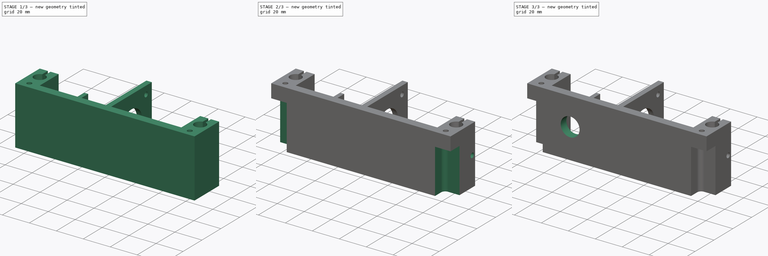
[diagram: build sequence overview — one tinted view per stage of 3, left to right]
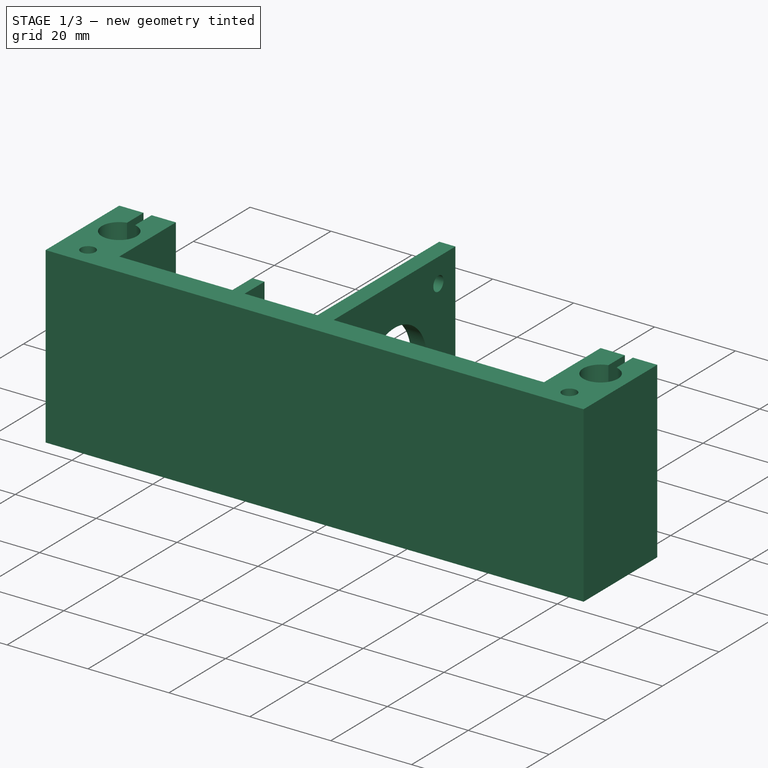
[diagram: stage 1 of 3 — iso view after this stage's code; geometry added in this stage tinted green]
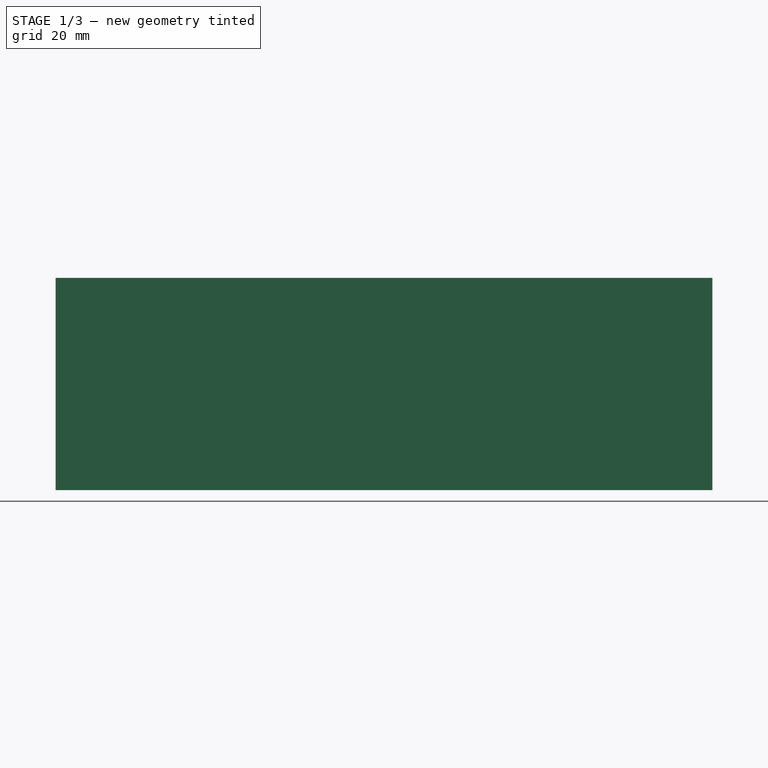
[diagram: stage 1 of 3 — front view after this stage's code; geometry added in this stage tinted green]
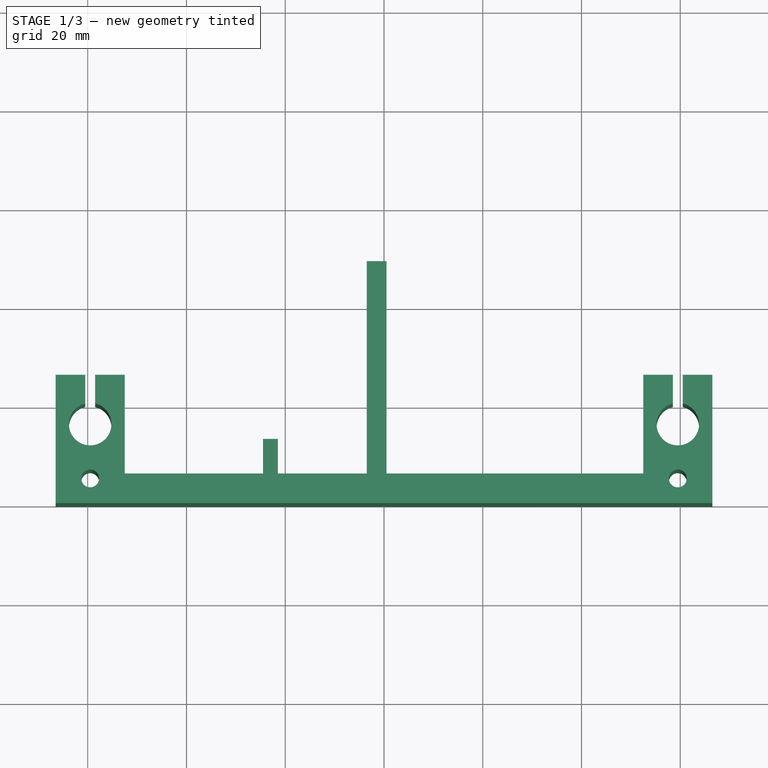
[diagram: stage 1 of 3 — top view after this stage's code; geometry added in this stage tinted green]
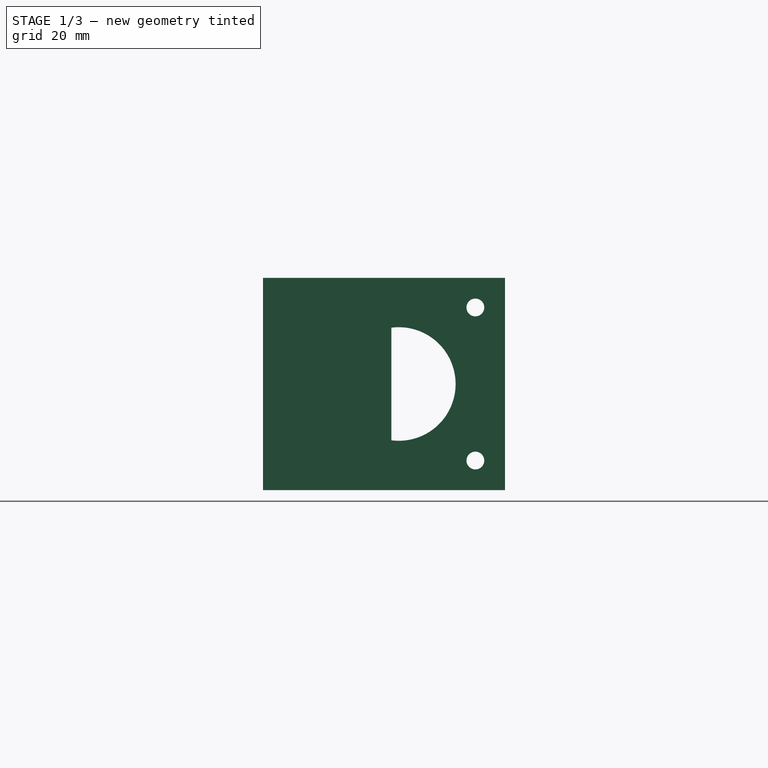
[diagram: stage 1 of 3 — right view after this stage's code; geometry added in this stage tinted green]
FCSTD DOCUMENT  (FreeCAD 0.16R6706 (Git))
Label: Suporte Motor X
License: All rights reserved
LicenseURL: http://en.wikipedia.org/wiki/All_rights_reserved
objects: Sketcher::SketchObject×6, PartDesign::Pocket×5, PartDesign::Pad×1
note: 18 computed .brp shape members not serialized (recipe doc carries the construction recipe); baked Part::Feature solids carry a one-line shape summary decoded from their .brp

FEATURE [Sketcher::SketchObject] Sketch  label="sk Base"
  sketch-geometry (28):
    g0: LineSegment [constr] StartX=-59.5 StartY=16 StartZ=0 EndX=59.5 EndY=16 EndZ=0
    g1: ArcOfCircle CenterX=-59.5 CenterY=16 CenterZ=0 NormalX=0 NormalY=0 NormalZ=1 Radius=4.3 StartAngle=1.8055 EndAngle=7.61927
    g2: ArcOfCircle CenterX=59.5 CenterY=16 CenterZ=0 NormalX=0 NormalY=0 NormalZ=1 Radius=4.3 StartAngle=1.8055 EndAngle=7.61927
    g3: LineSegment StartX=-66.5 StartY=0 StartZ=0 EndX=-66.5 EndY=26 EndZ=0
    g4: LineSegment StartX=-52.5 StartY=26 StartZ=0 EndX=-52.5 EndY=6 EndZ=0
    g5: LineSegment StartX=-52.5 StartY=6 StartZ=0 EndX=-24.5 EndY=6 EndZ=0
    g6: LineSegment StartX=-24.5 StartY=6 StartZ=0 EndX=-24.5 EndY=13 EndZ=0
    g7: LineSegment StartX=-24.5 StartY=13 StartZ=0 EndX=-21.5 EndY=13 EndZ=0
    g8: LineSegment StartX=-21.5 StartY=13 StartZ=0 EndX=-21.5 EndY=6 EndZ=0
    g9: LineSegment StartX=-21.5 StartY=6 StartZ=0 EndX=-3.5 EndY=6 EndZ=0
    g10: LineSegment StartX=-3.5 StartY=6 StartZ=0 EndX=-3.5 EndY=49 EndZ=0
    g11: LineSegment StartX=-3.5 StartY=49 StartZ=0 EndX=0.5 EndY=49 EndZ=0
    g12: LineSegment StartX=0.5 StartY=49 StartZ=0 EndX=0.5 EndY=6 EndZ=0
    g13: LineSegment StartX=0.5 StartY=6 StartZ=0 EndX=52.5 EndY=6 EndZ=0
    g14: LineSegment StartX=52.5 StartY=6 StartZ=0 EndX=52.5 EndY=26 EndZ=0
    g15: LineSegment StartX=66.5 StartY=26 StartZ=0 EndX=66.5 EndY=0 EndZ=0
    g16: LineSegment StartX=66.5 StartY=0 StartZ=0 EndX=-66.5 EndY=0 EndZ=0
    g17: LineSegment [constr] StartX=-59.5 StartY=5 StartZ=0 EndX=59.5 EndY=5 EndZ=0
    g18: Circle CenterX=-59.5 CenterY=5 CenterZ=0 NormalX=0 NormalY=0 NormalZ=1 Radius=1.8
    g19: Circle CenterX=59.5 CenterY=5 CenterZ=0 NormalX=0 NormalY=0 NormalZ=1 Radius=1.8
    g20: LineSegment StartX=-66.5 StartY=26 StartZ=0 EndX=-60.5 EndY=26 EndZ=0
    g21: LineSegment StartX=-58.5 StartY=26 StartZ=0 EndX=-52.5 EndY=26 EndZ=0
    g22: LineSegment StartX=-60.5 StartY=26 StartZ=0 EndX=-60.5 EndY=20.1821 EndZ=0
    g23: LineSegment StartX=-58.5 StartY=26 StartZ=0 EndX=-58.5 EndY=20.1821 EndZ=0
    g24: LineSegment StartX=52.5 StartY=26 StartZ=0 EndX=58.5 EndY=26 EndZ=0
    g25: LineSegment StartX=60.5 StartY=26 StartZ=0 EndX=66.5 EndY=26 EndZ=0
    g26: LineSegment StartX=60.5 StartY=26 StartZ=0 EndX=60.5 EndY=20.1821 EndZ=0
    g27: LineSegment StartX=58.5 StartY=26 StartZ=0 EndX=58.5 EndY=20.1821 EndZ=0
  constraints (83):
    c: DistanceX(g0,g0) = 119
    c: Radius(g1) = 4.3
    c: Equal(g1,g2) = 4.3
    c: Coincident(g1,g0)
    c: Coincident(g0,g2)
    c: Coincident(g4,g5)
    c: Coincident(g5,g6)
    c: Coincident(g6,g7)
    c: Coincident(g7,g8)
    c: Coincident(g8,g9)
    c: Coincident(g9,g10)
    c: Coincident(g10,g11)
    c: Coincident(g11,g12)
    c: Coincident(g12,g13)
    c: Coincident(g13,g14)
    c: Coincident(g15,g16)
    c: Coincident(g3,g16)
    c: Vertical(g3)
    c: Vertical(g4)
    c: Vertical(g6)
    c: Vertical(g8)
    c: Vertical(g10)
    c: Vertical(g12)
    c: Vertical(g14)
    c: Vertical(g15)
    c: Horizontal(g16)
    c: Horizontal(g5)
    c: Horizontal(g9)
    c: Horizontal(g7)
    c: Horizontal(g11)
    c: Horizontal(g13)
    c: DistanceY(g15,g13) = 6
    c: DistanceY(g13,g0) = 10
    c: Equal(g15,g3)
    c: DistanceX(g14,g15) = 14
    c: PointOnObject(g9,g13)
    c: PointOnObject(g5,g13)
    c: DistanceX(g11,g11) = 4
    c: DistanceY(g12,g12) = 43
    c: DistanceX(g7,g7) = 3
    c: DistanceY(g8,g8) = 7
    c: DistanceX(g4,g5) = 28
    c: Symmetric(g3,g15,g-1)
    c: Horizontal(g17)
    c: Equal(g0,g17) = 119
    c: Symmetric(g17,g17,g-2)
    c: DistanceY(g17,g0) = 11
    c: Radius(g18) = 1.8
    c: Equal(g18,g19) = 1.8
    c: Coincident(g18,g17)
    c: Coincident(g17,g19)
    c: Horizontal(g21)
    c: Horizontal(g20)
    c: Equal(g20,g21)
    c: Coincident(g21,g4)
    c: Coincident(g3,g20)
    c: DistanceX(g20,g21) = 2
    c: Vertical(g23)
    c: Vertical(g22)
    c: Coincident(g21,g23)
    c: Coincident(g20,g22)
    c: DistanceX(g20,g20) = 6
    c: Coincident(g1,g22)
    c: Coincident(g1,g23)
    c: Horizontal(g24)
    c: Horizontal(g25)
    c: Vertical(g27)
    c: Vertical(g26)
    c: Equal(g24,g25)
    c: Equal(g3,g15)
    c: Coincident(g14,g24)
    c: Symmetric(g0,g0,g-2)
    c: DistanceX(g16,g16) = 133
    c: Coincident(g15,g25)
    c: PointOnObject(g21,g20)
    c: PointOnObject(g24,g20)
    c: DistanceX(g24,g25) = 2
    c: Coincident(g25,g26)
    c: Coincident(g24,g27)
    c: Coincident(g2,g27)
    c: Coincident(g2,g26)
    c: DistanceY(g0,g3) = 10
    c: DistanceX(g13,g13) = 52
FEATURE [PartDesign::Pad] Pad
  Length = 43
  Length2 = 100
  Sketch = -> Sketch
  Type = 0
FEATURE [Sketcher::SketchObject] Sketch001  label="sk Motor"
  ExternalGeometry = -> [Pad]
  Placement = pos=(-3.5,0,0) rot=(0.57735,-0.57735,-0.57735;2.0944rad)
  Support = -> Pad [Face16]
  sketch-geometry (9):
    g0: LineSegment [constr] StartX=-43 StartY=37 StartZ=0 EndX=-12 EndY=37 EndZ=0
    g1: LineSegment [constr] StartX=-12 StartY=37 StartZ=0 EndX=-12 EndY=6 EndZ=0
    g2: LineSegment [constr] StartX=-12 StartY=6 StartZ=0 EndX=-43 EndY=6 EndZ=0
    g3: LineSegment [constr] StartX=-43 StartY=6 StartZ=0 EndX=-43 EndY=37 EndZ=0
    g4: Circle CenterX=-27.5 CenterY=21.5 CenterZ=0 NormalX=0 NormalY=0 NormalZ=1 Radius=11.5
    g5: Circle CenterX=-43 CenterY=37 CenterZ=0 NormalX=0 NormalY=0 NormalZ=1 Radius=1.8
    g6: Circle CenterX=-12 CenterY=6 CenterZ=0 NormalX=0 NormalY=0 NormalZ=1 Radius=1.8
    g7: Circle CenterX=-43 CenterY=6 CenterZ=0 NormalX=0 NormalY=0 NormalZ=1 Radius=1.8
    g8: Circle CenterX=-12 CenterY=37 CenterZ=0 NormalX=0 NormalY=0 NormalZ=1 Radius=1.8
  constraints (22):
    c: Coincident(g0,g1)
    c: Coincident(g1,g2)
    c: Coincident(g2,g3)
    c: Coincident(g3,g0)
    c: Horizontal(g0)
    c: Horizontal(g2)
    c: Vertical(g1)
    c: Vertical(g3)
    c: DistanceX(g2,g2) = 31
    c: Equal(g2,g1)
    c: Radius(g4) = 11.5
    c: Symmetric(g0,g2,g4)
    c: Radius(g5) = 1.8
    c: Equal(g5,g6) = 1.8
    c: Equal(g5,g7) = 1.8
    c: Equal(g5,g8) = 1.8
    c: Coincident(g0,g8)
    c: Coincident(g1,g6)
    c: Coincident(g2,g7)
    c: Coincident(g5,g0)
    c: DistanceY(g-4,g2) = 6
    c: DistanceX(g-4,g2) = 6
FEATURE [PartDesign::Pocket] Pocket
  Length = 5
  Sketch = -> Sketch001
  Type = 2
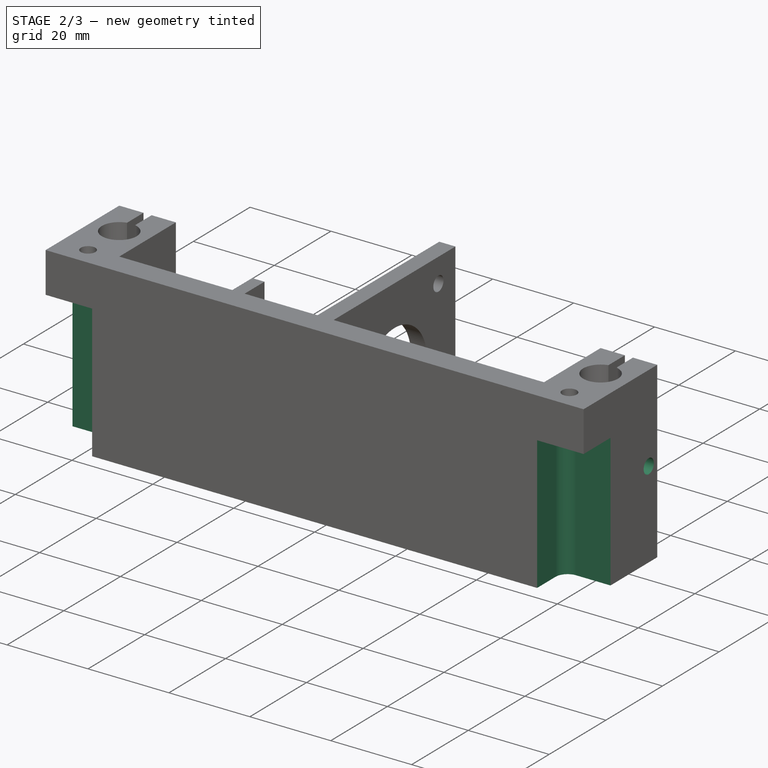
[diagram: stage 2 of 3 — iso view after this stage's code; geometry added in this stage tinted green]
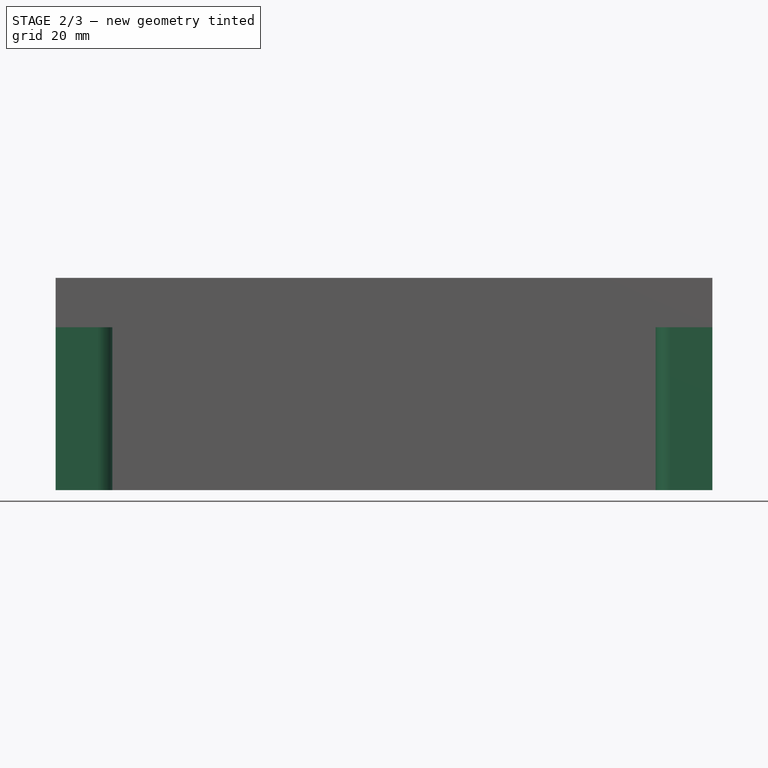
[diagram: stage 2 of 3 — front view after this stage's code; geometry added in this stage tinted green]
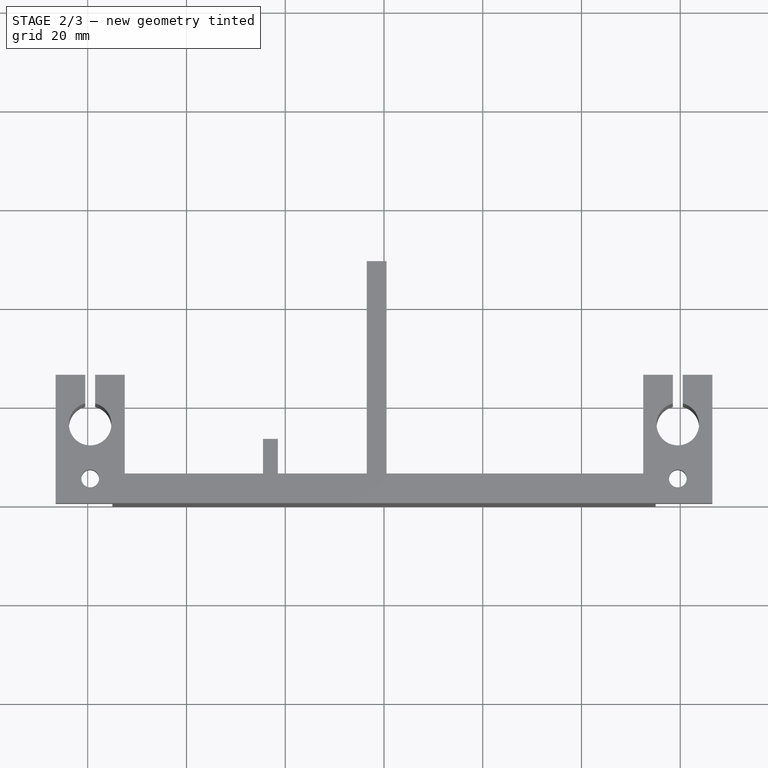
[diagram: stage 2 of 3 — top view after this stage's code; geometry added in this stage tinted green]
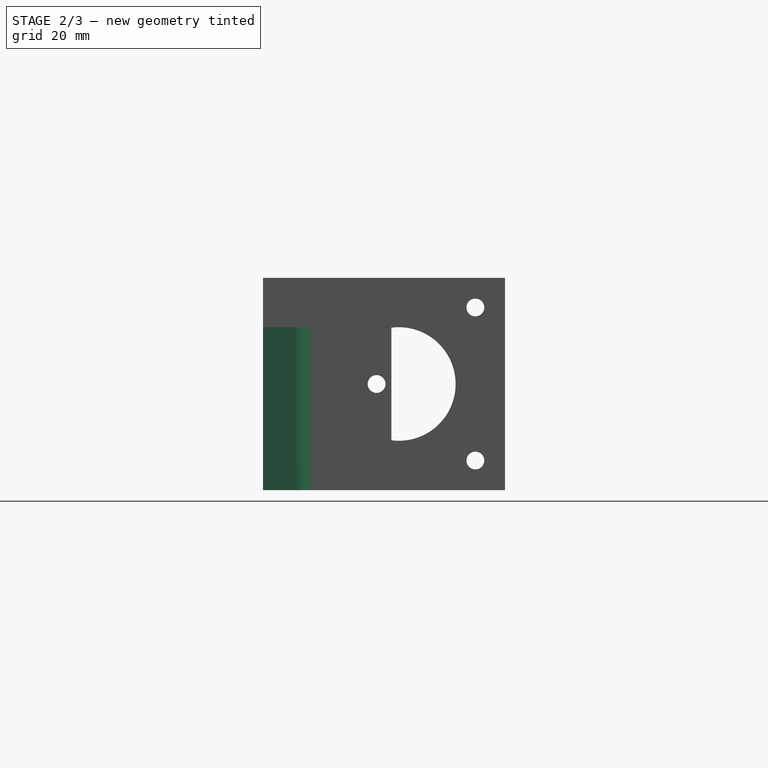
[diagram: stage 2 of 3 — right view after this stage's code; geometry added in this stage tinted green]
FEATURE [Sketcher::SketchObject] Sketch002  label="sk Borda Parafuso fixacao"
  ExternalGeometry = -> [Pocket]
  Placement = pos=(0,0,0) rot=(1,0,0;3.14159rad)
  Support = -> Pocket [Face3]
  sketch-geometry (9):
    g0: LineSegment [constr] StartX=-59.5 StartY=-5 StartZ=0 EndX=59.5 EndY=-5 EndZ=0
    g1: LineSegment StartX=-66.5 StartY=0 StartZ=0 EndX=-55 EndY=0 EndZ=0
    g2: LineSegment StartX=-55 StartY=0 StartZ=0 EndX=-55 EndY=-9.5 EndZ=0
    g3: LineSegment StartX=-55 StartY=-9.5 StartZ=0 EndX=-66.5 EndY=-9.5 EndZ=0
    g4: LineSegment StartX=-66.5 StartY=-9.5 StartZ=0 EndX=-66.5 EndY=0 EndZ=0
    g5: LineSegment StartX=55 StartY=0 StartZ=0 EndX=66.5 EndY=0 EndZ=0
    g6: LineSegment StartX=66.5 StartY=0 StartZ=0 EndX=66.5 EndY=-9.5 EndZ=0
    g7: LineSegment StartX=66.5 StartY=-9.5 StartZ=0 EndX=55 EndY=-9.5 EndZ=0
    g8: LineSegment StartX=55 StartY=-9.5 StartZ=0 EndX=55 EndY=0 EndZ=0
  constraints (26):
    c: Horizontal(g0)
    c: DistanceX(g0,g0) = 119
    c: Symmetric(g0,g0,g-2)
    c: DistanceY(g0,g-1) = 5
    c: Coincident(g1,g2)
    c: Coincident(g3,g4)
    c: Coincident(g4,g1)
    c: Horizontal(g1)
    c: Horizontal(g3)
    c: Vertical(g2)
    c: Vertical(g4)
    c: Coincident(g-3,g1)
    c: DistanceY(g4,g4) = 9.5
    c: Coincident(g5,g6)
    c: Coincident(g6,g7)
    c: Coincident(g8,g5)
    c: Horizontal(g5)
    c: Horizontal(g7)
    c: Vertical(g6)
    c: Vertical(g8)
    c: Coincident(g-3,g5)
    c: DistanceX(g1,g1) = 11.5
    c: DistanceY(g6,g6) = 9.5
    c: DistanceX(g5,g5) = 11.5
    c: Coincident(g2,g3)
    c: Coincident(g8,g7)
FEATURE [PartDesign::Pocket] Pocket003
  Length = 33
  Sketch = -> Sketch002
  Type = 0
FEATURE [Sketcher::SketchObject] Sketch003  label="sk fixacao haste"
  ExternalGeometry = -> [Pocket003]
  Placement = pos=(66.5,0,0) rot=(0.57735,0.57735,0.57735;2.0944rad)
  Support = -> Pocket003 [Face5]
  sketch-geometry (2):
    g0: Circle CenterX=23 CenterY=21.5 CenterZ=0 NormalX=0 NormalY=0 NormalZ=1 Radius=1.8
    g1: LineSegment [constr] StartX=23 StartY=21.5 StartZ=0 EndX=26 EndY=21.5 EndZ=0
  constraints (5):
    c: Radius(g0) = 1.8
    c: Horizontal(g1)
    c: DistanceX(g1,g1) = 3
    c: Symmetric(g-3,g-3,g1)
    c: Coincident(g0,g1)
FEATURE [PartDesign::Pocket] Pocket004
  Length = 5
  Sketch = -> Sketch003
  Type = 1
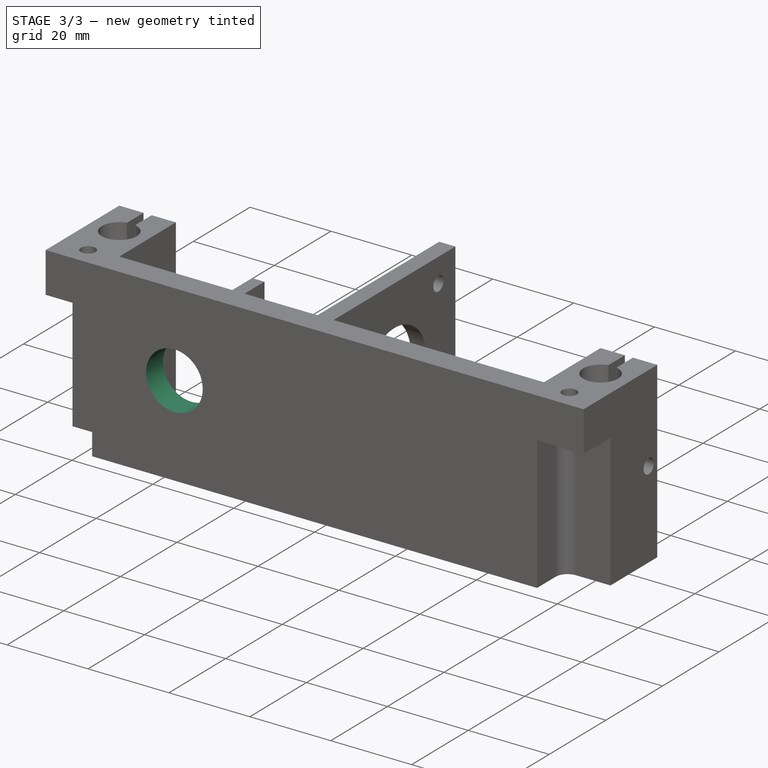
[diagram: stage 3 of 3 — iso view after this stage's code; geometry added in this stage tinted green]
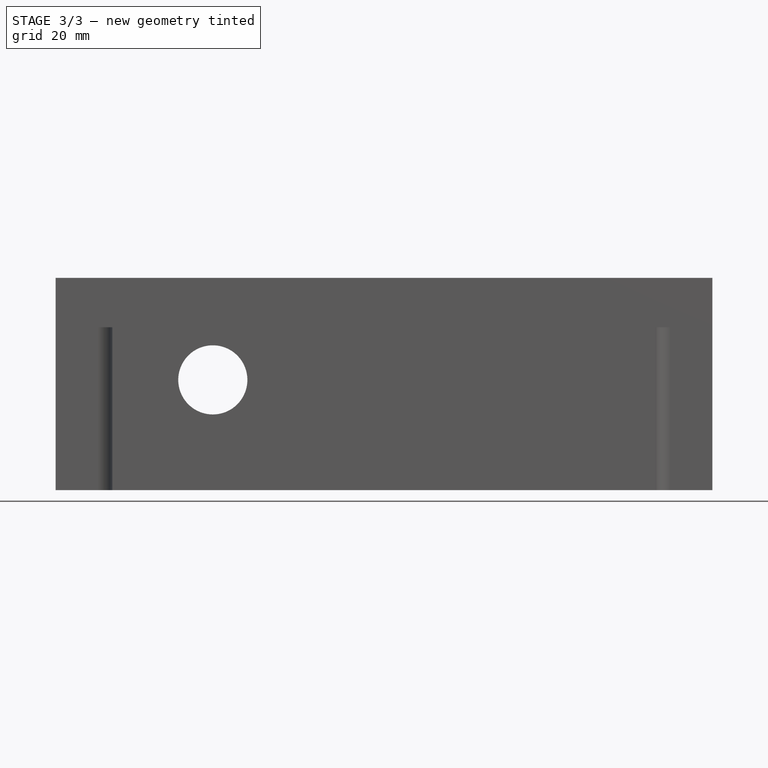
[diagram: stage 3 of 3 — front view after this stage's code; geometry added in this stage tinted green]
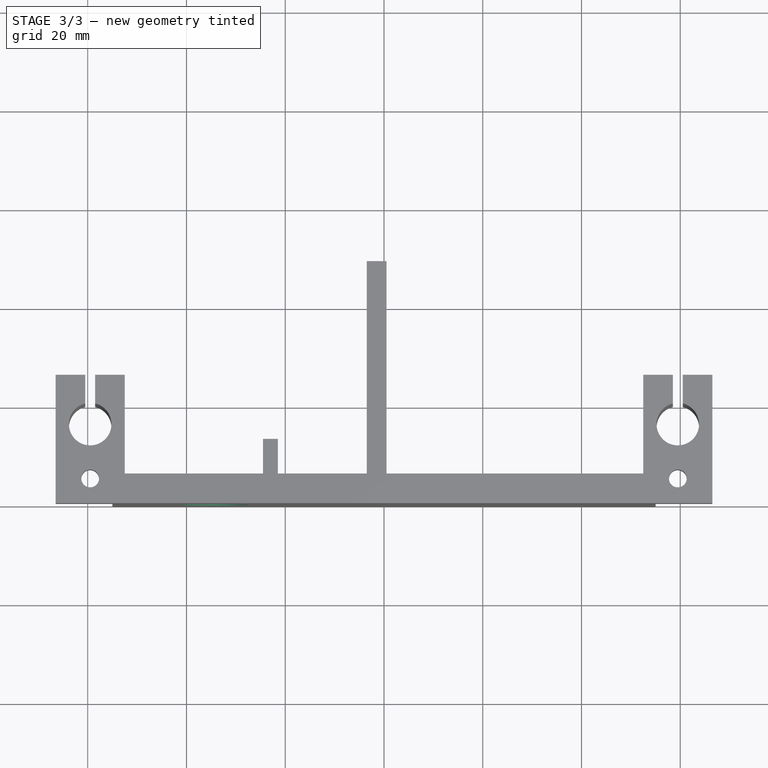
[diagram: stage 3 of 3 — top view after this stage's code; geometry added in this stage tinted green]
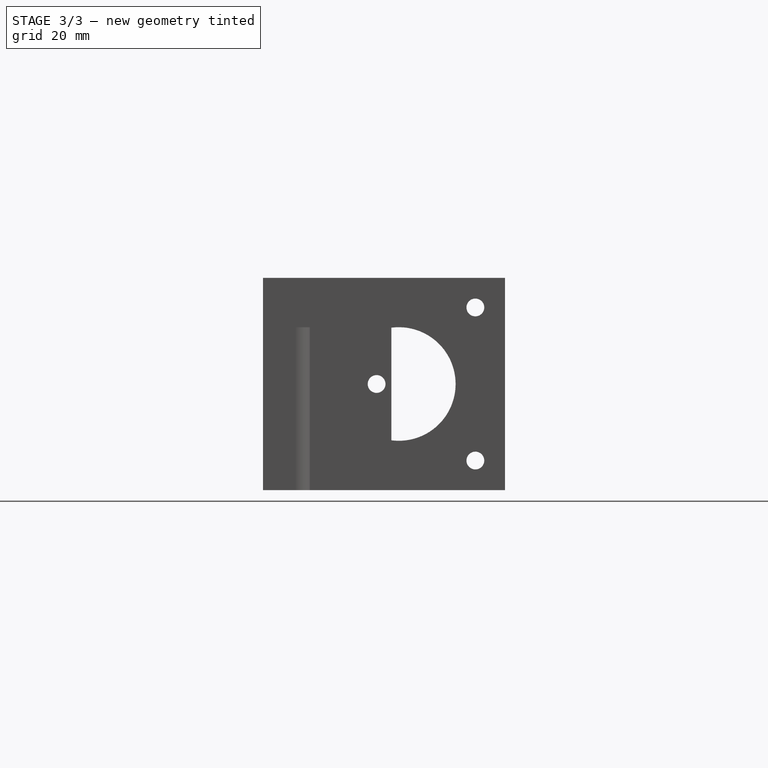
[diagram: stage 3 of 3 — right view after this stage's code; geometry added in this stage tinted green]
FEATURE [Sketcher::SketchObject] Sketch004  label="Abracadeira para chicote"
  ExternalGeometry = -> [Pocket004]
  Placement = pos=(-24.5,0,0) rot=(0.57735,-0.57735,-0.57735;2.0944rad)
  Support = -> Pocket004 [Face23]
  sketch-geometry (4):
    g0: LineSegment [constr] StartX=-10 StartY=29 StartZ=0 EndX=-10 EndY=14 EndZ=0
    g1: Circle CenterX=-10 CenterY=29 CenterZ=0 NormalX=0 NormalY=0 NormalZ=1 Radius=2
    g2: Circle CenterX=-10 CenterY=14 CenterZ=0 NormalX=0 NormalY=0 NormalZ=1 Radius=2
    g3: LineSegment [constr] StartX=-13 StartY=21.5 StartZ=0 EndX=-10 EndY=21.5 EndZ=0
  constraints (10):
    c: Vertical(g0)
    c: Radius(g1) = 2
    c: Equal(g1,g2) = 2
    c: Coincident(g0,g2)
    c: Coincident(g0,g1)
    c: Horizontal(g3)
    c: DistanceX(g3,g3) = 3
    c: DistanceY(g0,g0) = 15
    c: Symmetric(g0,g0,g3)
    c: Symmetric(g-4,g-3,g3)
FEATURE [PartDesign::Pocket] Pocket005
  Length = 5
  Sketch = -> Sketch004
  Type = 2
FEATURE [Sketcher::SketchObject] Sketch005  label="furo passagem chicote"
  Placement = pos=(0,6,0) rot=(0,0.707107,0.707107;3.14159rad)
  Support = -> Pocket005 [Face22]
  sketch-geometry (1):
    g0: Circle CenterX=34.6667 CenterY=22.334 CenterZ=0 NormalX=0 NormalY=0 NormalZ=1 Radius=7
  constraints (1):
    c: Radius(g0) = 7
FEATURE [PartDesign::Pocket] Pocket006
  Length = 5
  Sketch = -> Sketch005
  Type = 2
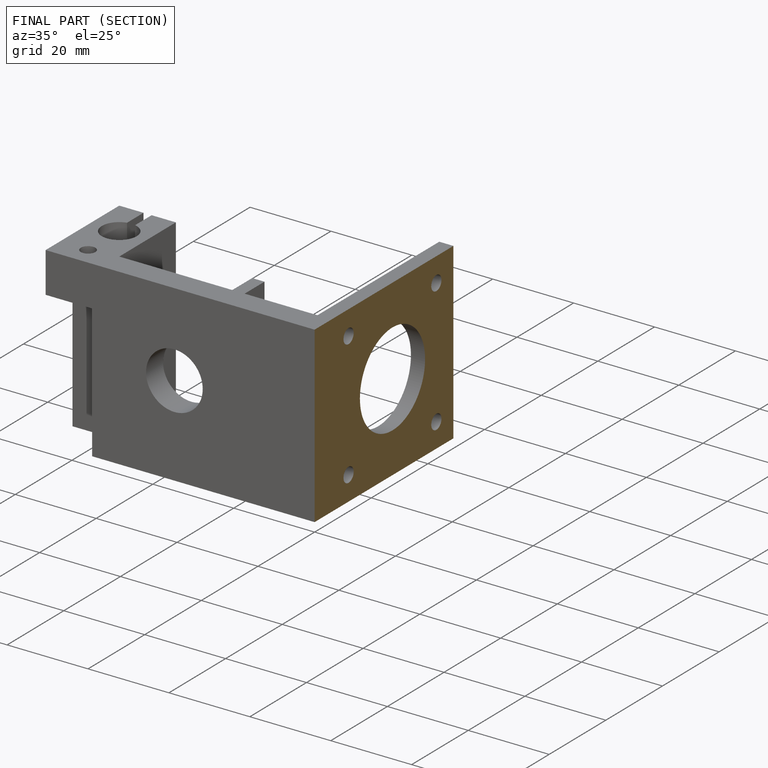
[diagram: finished part — half-section view (interior)]
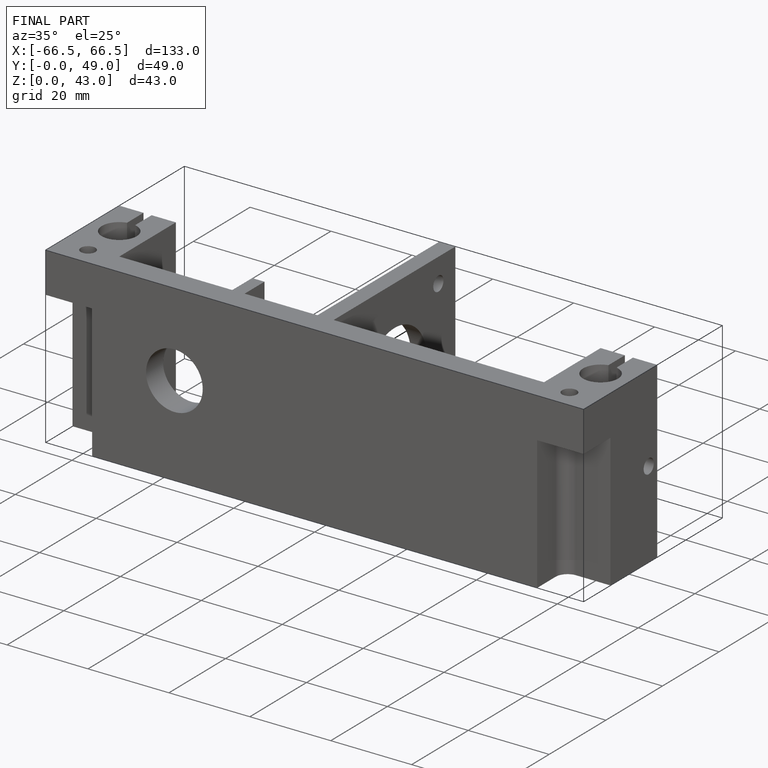
[diagram: finished part — iso view with bounding-box wireframe]
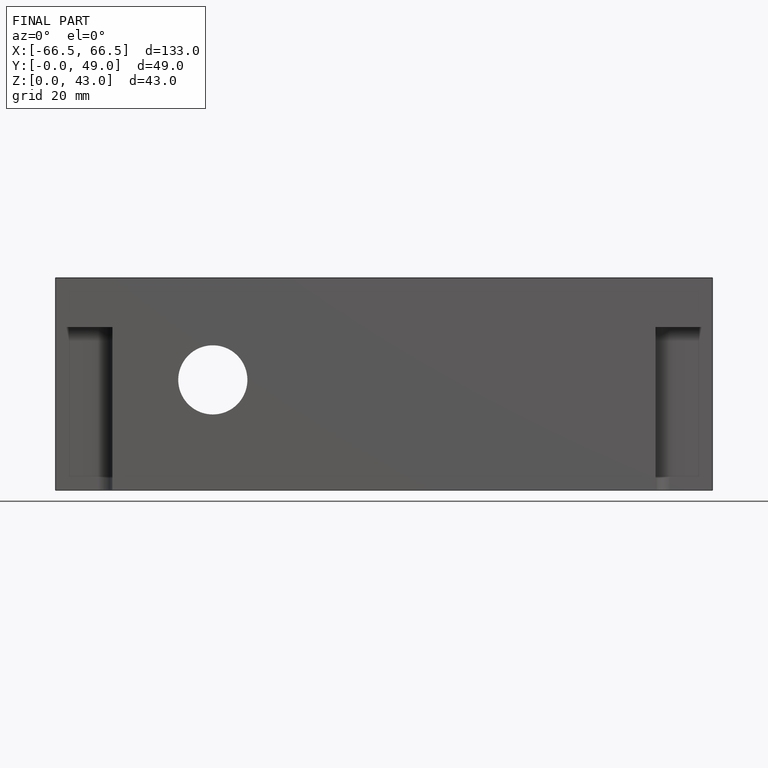
[diagram: finished part — front view with bounding-box wireframe]
